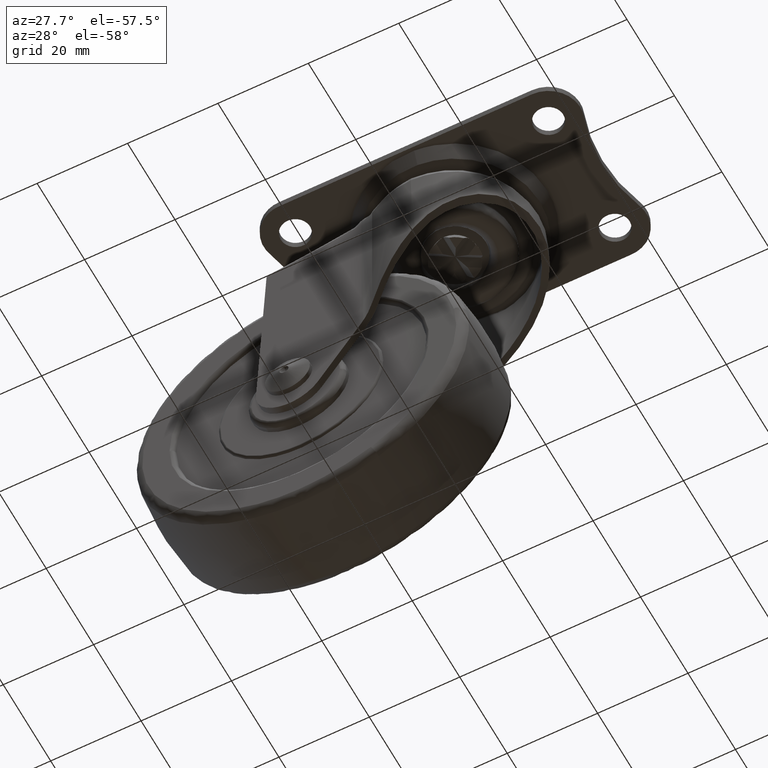
[diagram: clean part render]
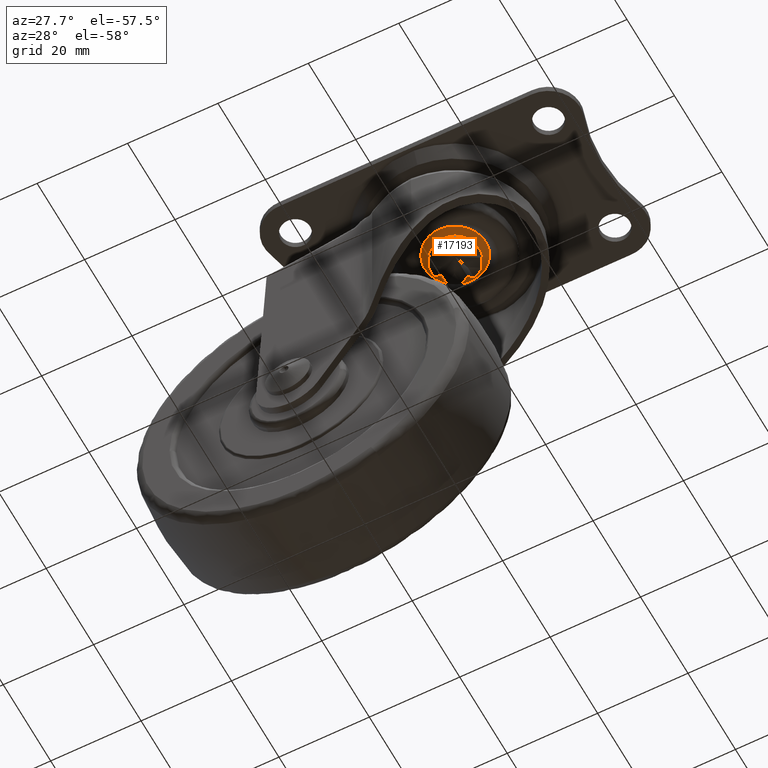
[diagram: same view with one face highlighted and labeled with its STEP entity id]
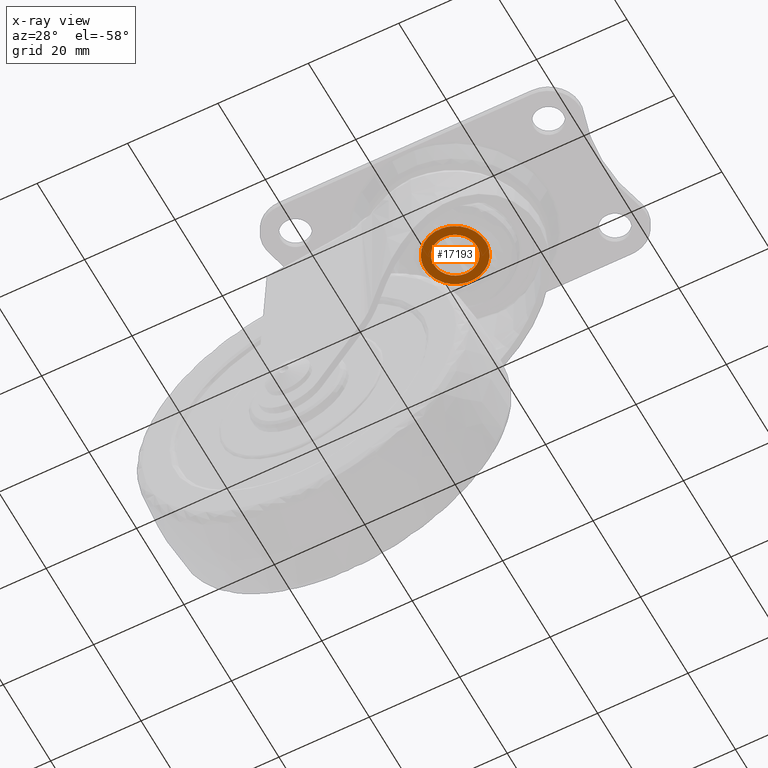
[diagram: x-ray of the same camera — body ghosted, the highlighted face saturated]
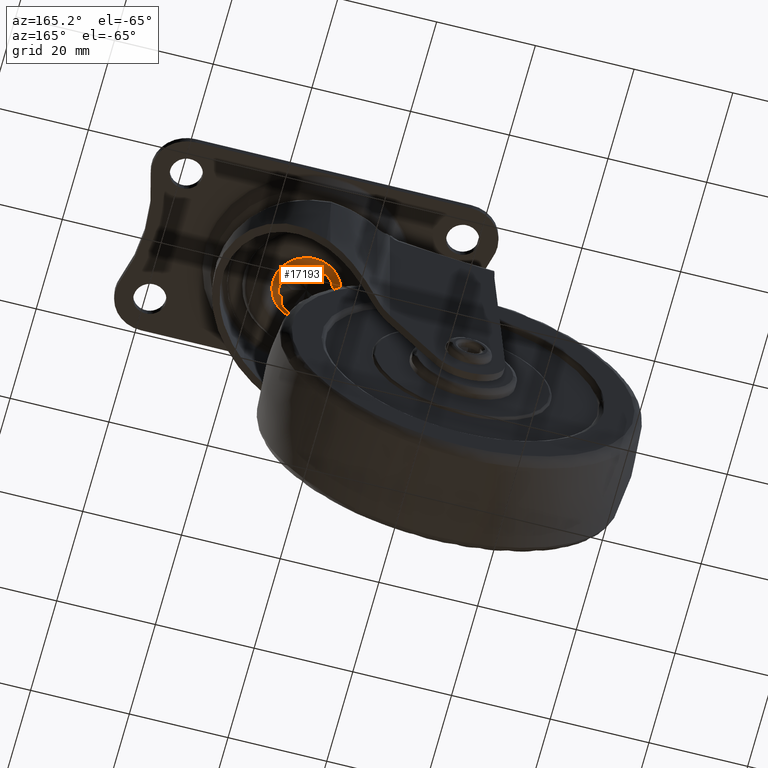
[diagram: same view with one face highlighted and labeled with its STEP entity id]
A machine part, auxiliary view. The second image highlights one B-rep face of the part: STEP entity #17193.
The next image is the same camera in x-ray: the body ghosted, the highlighted face saturated — about 0% of this face is hidden behind the body in this view.
A second angle (auxiliary view) of the same face is appended — the face is thin or edge-on in the first view.
In plain terms, the highlighted face is a freeform B-spline surface patch.
Its self-contained STEP definition (entity closure, byte-faithful):
#16355=CARTESIAN_POINT('',(0.412077641956885,-6.737409889341707,-9.039990000000000));
#16356=VERTEX_POINT('',#16355);
#16362=CARTESIAN_POINT('',(6.750000000000000,-1.421085E-014,-9.039990000000000));
#16363=VERTEX_POINT('',#16362);
#16364=CARTESIAN_POINT('',(6.750000000000000,-1.421085E-014,-9.039990000000000));
#16365=CARTESIAN_POINT('',(6.750000000000001,-6.349765951431015,-9.039990000000000));
#16366=CARTESIAN_POINT('',(0.412077641956885,-6.737409889341708,-9.039990000000000));
#16374=(BOUNDED_CURVE()B_SPLINE_CURVE(2,(#16364,#16365,#16366),.UNSPECIFIED.,.F.,.U.)B_SPLINE_CURVE_WITH_KNOTS((3,3),(0.500000000000000,0.739332962237020),.UNSPECIFIED.)CURVE()GEOMETRIC_REPRESENTATION_ITEM()RATIONAL_B_SPLINE_CURVE((1.0,0.719603993288963,0.976072041662597))REPRESENTATION_ITEM(''));
#16375=EDGE_CURVE('',#16363,#16356,#16374,.T.);
#16377=CARTESIAN_POINT('',(-0.796719633930631,6.702815663941257,-9.039990000000000));
#16378=VERTEX_POINT('',#16377);
#16379=CARTESIAN_POINT('',(-0.796719633930631,6.702815663941257,-9.039990000000000));
#16380=CARTESIAN_POINT('',(-0.399757022126634,6.749999999999986,-9.039990000000000));
#16381=CARTESIAN_POINT('',(0.0,6.749999999999986,-9.039990000000000));
#16382=CARTESIAN_POINT('',(6.750000000000000,6.749999999999986,-9.039990000000000));
#16383=CARTESIAN_POINT('',(6.750000000000000,-1.421085E-014,-9.039990000000000));
#16391=(BOUNDED_CURVE()B_SPLINE_CURVE(2,(#16379,#16380,#16381,#16382,#16383),.UNSPECIFIED.,.F.,.U.)B_SPLINE_CURVE_WITH_KNOTS((3,2,3),(0.229562762213455,0.250000000000000,0.500000000000000),.UNSPECIFIED.)CURVE()GEOMETRIC_REPRESENTATION_ITEM()RATIONAL_B_SPLINE_CURVE((0.956027320048191,0.976056286564172,1.0,0.707106781186548,1.0))REPRESENTATION_ITEM(''));
#16392=EDGE_CURVE('',#16378,#16363,#16391,.T.);
#16440=CARTESIAN_POINT('',(-6.750000000000000,-1.421085E-014,-9.039990000000000));
#16441=VERTEX_POINT('',#16440);
#16442=CARTESIAN_POINT('',(-6.750000000000000,-1.421085E-014,-9.039990000000000));
#16443=CARTESIAN_POINT('',(-6.750000000000001,5.995188363463512,-9.039990000000000));
#16444=CARTESIAN_POINT('',(-0.796719633930631,6.702815663941257,-9.039990000000000));
#16452=(BOUNDED_CURVE()B_SPLINE_CURVE(2,(#16442,#16443,#16444),.UNSPECIFIED.,.F.,.U.)B_SPLINE_CURVE_WITH_KNOTS((3,3),(0.0,0.229562762213455),.UNSPECIFIED.)CURVE()GEOMETRIC_REPRESENTATION_ITEM()RATIONAL_B_SPLINE_CURVE((1.0,0.731050494622376,0.956027320048191))REPRESENTATION_ITEM(''));
#16453=EDGE_CURVE('',#16441,#16378,#16452,.T.);
#16455=CARTESIAN_POINT('',(0.412077641956885,-6.737409889341707,-9.039990000000000));
#16456=CARTESIAN_POINT('',(0.206231152362346,-6.750000000000014,-9.039989999999998));
#16457=CARTESIAN_POINT('',(0.0,-6.750000000000014,-9.039990000000000));
#16458=CARTESIAN_POINT('',(-6.750000000000000,-6.750000000000014,-9.039990000000000));
#16459=CARTESIAN_POINT('',(-6.750000000000000,-1.421085E-014,-9.039990000000000));
#16467=(BOUNDED_CURVE()B_SPLINE_CURVE(2,(#16455,#16456,#16457,#16458,#16459),.UNSPECIFIED.,.F.,.U.)B_SPLINE_CURVE_WITH_KNOTS((3,2,3),(0.739332962237020,0.750000000000000,1.0),.UNSPECIFIED.)CURVE()GEOMETRIC_REPRESENTATION_ITEM()RATIONAL_B_SPLINE_CURVE((0.976072041662597,0.987502787897585,1.0,0.707106781186548,1.0))REPRESENTATION_ITEM(''));
#16468=EDGE_CURVE('',#16356,#16441,#16467,.T.);
#16532=CARTESIAN_POINT('',(1.957861846357595,4.327728463553269,-9.039982919532474));
#16533=VERTEX_POINT('',#16532);
#16534=CARTESIAN_POINT('',(4.750000000000000,-1.421085E-014,-9.039990000000000));
#16535=VERTEX_POINT('',#16534);
#16536=CARTESIAN_POINT('',(1.957861846357594,4.327728463553269,-9.039982919532475));
#16537=CARTESIAN_POINT('',(4.749999059870858,3.064569711313320,-9.039986459766237));
#16538=CARTESIAN_POINT('',(4.750000000000000,-1.421085E-014,-9.039990000000000));
#16546=(BOUNDED_CURVE()B_SPLINE_CURVE(2,(#16536,#16537,#16538),.UNSPECIFIED.,.F.,.U.)B_SPLINE_CURVE_WITH_KNOTS((3,3),(0.319999991491659,0.500000000000000),.UNSPECIFIED.)CURVE()GEOMETRIC_REPRESENTATION_ITEM()RATIONAL_B_SPLINE_CURVE((0.881905462946381,0.789116872486173,1.0))REPRESENTATION_ITEM(''));
#16547=EDGE_CURVE('',#16533,#16535,#16546,.T.);
#16549=CARTESIAN_POINT('',(-4.749995438301775,-1.421092E-014,-9.039982919567695));
#16550=VERTEX_POINT('',#16549);
#16551=CARTESIAN_POINT('',(4.750000000000000,-1.421085E-014,-9.039990000000000));
#16552=CARTESIAN_POINT('',(4.750000000000000,-4.750000000000014,-9.039990000000000));
#16553=CARTESIAN_POINT('',(0.000002280849113,-4.750000000000013,-9.039986459783847));
#16554=CARTESIAN_POINT('',(-4.749995438301775,-4.750000000000014,-9.039982919567695));
#16555=CARTESIAN_POINT('',(-4.749995438301775,-1.421092E-014,-9.039982919567695));
#16563=(BOUNDED_CURVE()B_SPLINE_CURVE(2,(#16551,#16552,#16553,#16554,#16555),.UNSPECIFIED.,.F.,.U.)B_SPLINE_CURVE_WITH_KNOTS((3,2,3),(0.500000000000000,0.750000000000000,1.0),.UNSPECIFIED.)CURVE()GEOMETRIC_REPRESENTATION_ITEM()RATIONAL_B_SPLINE_CURVE((1.0,0.707106781186548,1.0,0.707106781186548,1.0))REPRESENTATION_ITEM(''));
#16564=EDGE_CURVE('',#16535,#16550,#16563,.T.);
#16817=CARTESIAN_POINT('',(-4.749995438301775,-1.421092E-014,-9.039982919567695));
#16818=CARTESIAN_POINT('',(-4.749997516390005,4.749998659268747,-9.039982919556332));
#16819=CARTESIAN_POINT('',(-0.000000737368261,4.749996581173070,-9.039982919538723));
#16820=CARTESIAN_POINT('',(1.024467242109477,4.749996132974351,-9.039982919534923));
#16821=CARTESIAN_POINT('',(1.957861846357594,4.327728463553269,-9.039982919532475));
#16829=(BOUNDED_CURVE()B_SPLINE_CURVE(2,(#16817,#16818,#16819,#16820,#16821),.UNSPECIFIED.,.F.,.U.)B_SPLINE_CURVE_WITH_KNOTS((3,2,3),(0.0,0.250000000000000,0.319999991491659),.UNSPECIFIED.)CURVE()GEOMETRIC_REPRESENTATION_ITEM()RATIONAL_B_SPLINE_CURVE((1.0,0.707106781186548,1.0,0.917989908700374,0.881905462946381))REPRESENTATION_ITEM(''));
#16830=EDGE_CURVE('',#16550,#16533,#16829,.T.);
#17177=CARTESIAN_POINT('',(7.424324973834381,-7.424160811562288,-9.039990000000000));
#17178=CARTESIAN_POINT('',(-7.424325335932597,-7.424160811562288,-9.039990000000000));
#17179=CARTESIAN_POINT('',(7.424324973834381,7.424202211458406,-9.039990000000000));
#17180=CARTESIAN_POINT('',(-7.424325335932597,7.424202211458406,-9.039990000000000));
#17181=B_SPLINE_SURFACE_WITH_KNOTS('',1,1,((#17177,#17179),(#17178,#17180)),.UNSPECIFIED.,.F.,.F.,.U.,(2,2),(2,2),(0.0,14.848650309766979),(0.0,14.848363023020690),.UNSPECIFIED.);
#17182=ORIENTED_EDGE('',*,*,#16453,.T.);
#17183=ORIENTED_EDGE('',*,*,#16392,.T.);
#17184=ORIENTED_EDGE('',*,*,#16375,.T.);
#17185=ORIENTED_EDGE('',*,*,#16468,.T.);
#17186=EDGE_LOOP('',(#17182,#17183,#17184,#17185));
#17187=FACE_OUTER_BOUND('',#17186,.T.);
#17188=ORIENTED_EDGE('',*,*,#16564,.F.);
#17189=ORIENTED_EDGE('',*,*,#16547,.F.);
#17190=ORIENTED_EDGE('',*,*,#16830,.F.);
#17191=EDGE_LOOP('',(#17188,#17189,#17190));
#17192=FACE_BOUND('',#17191,.T.);
#17193=ADVANCED_FACE('',(#17187,#17192),#17181,.T.);